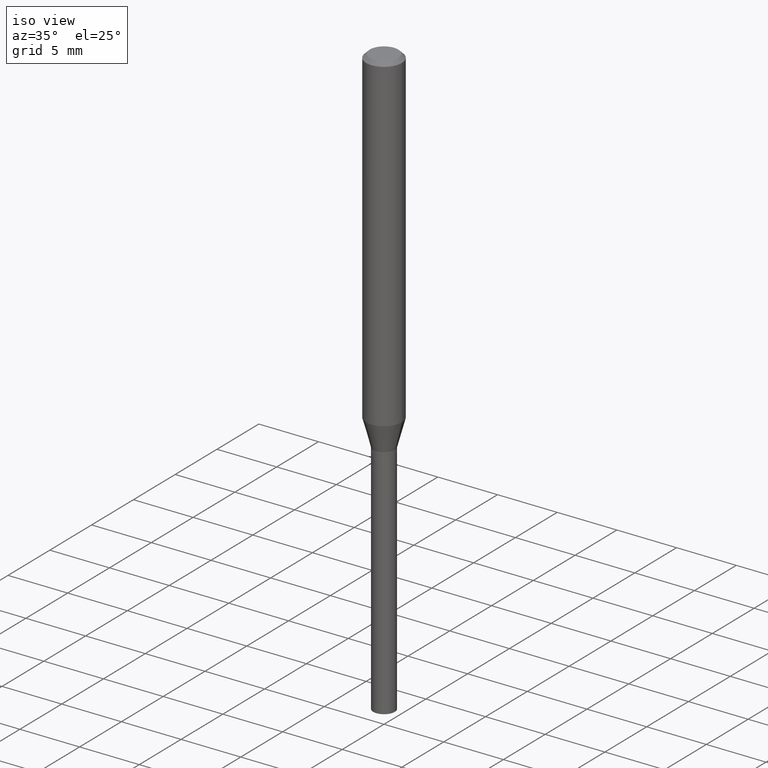
[diagram: clean part render]
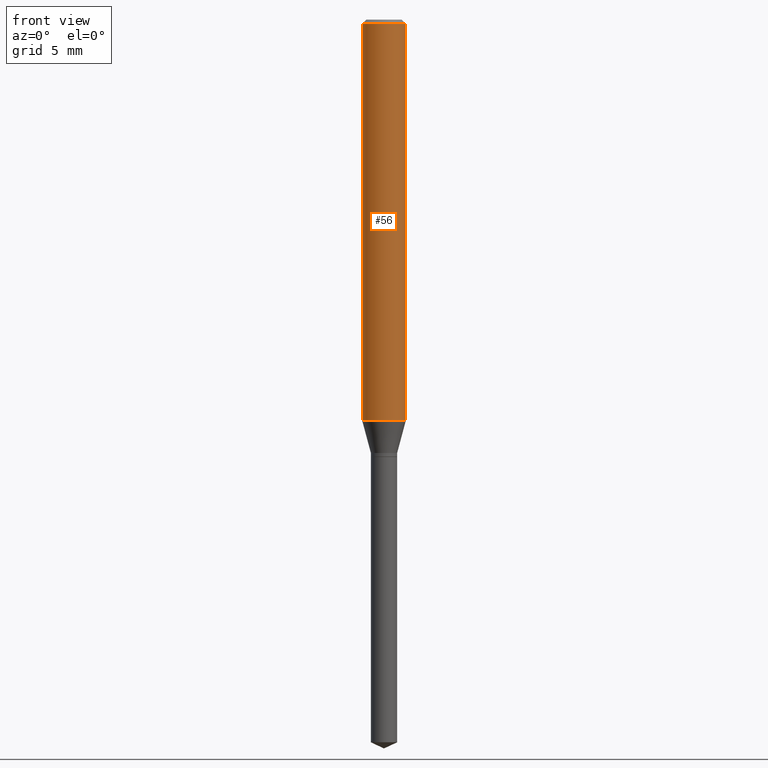
[diagram: tour spotlight — one face highlighted and labeled with its STEP entity id]
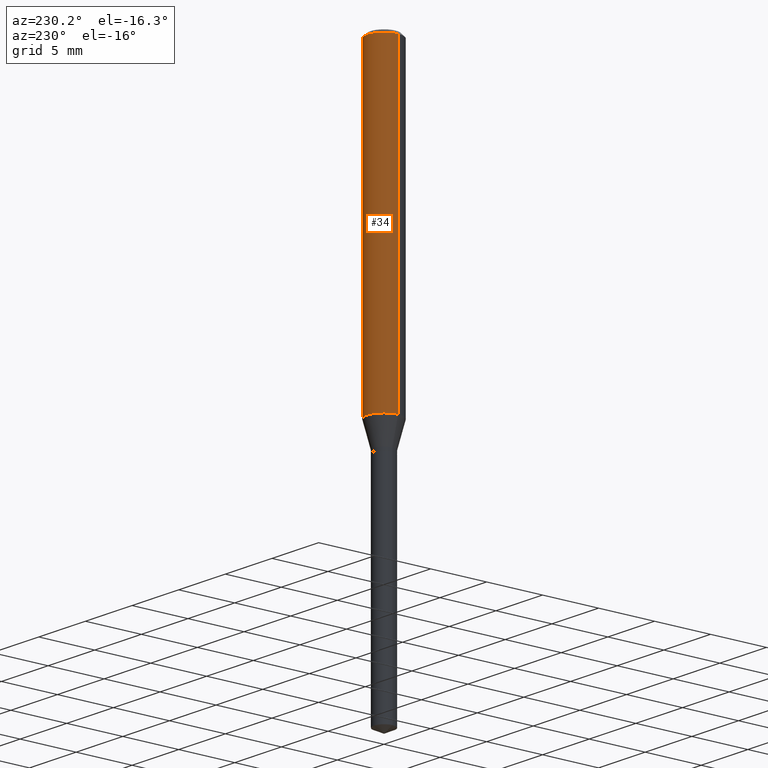
[diagram: tour spotlight — one face highlighted and labeled with its STEP entity id]
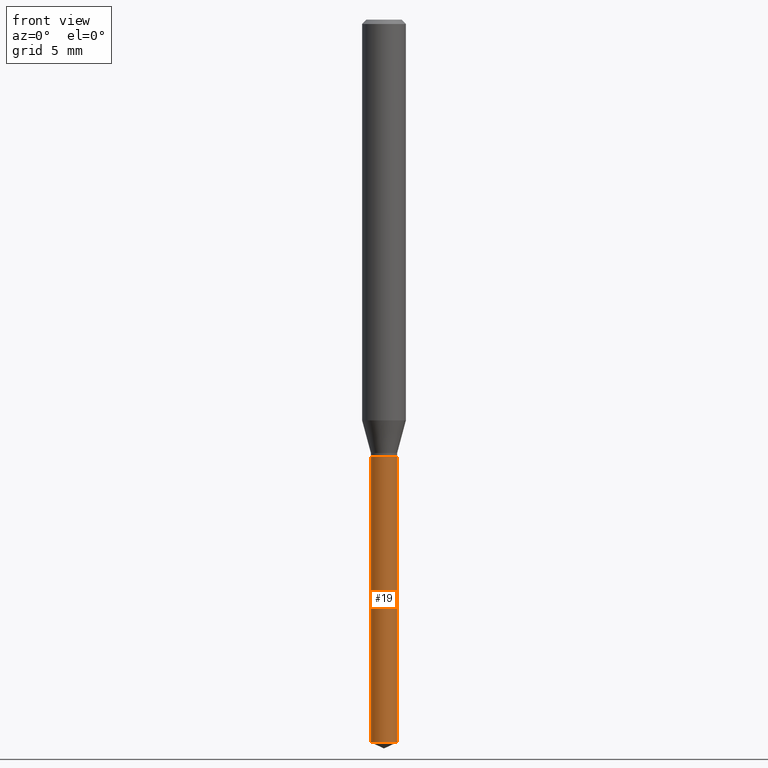
[diagram: tour spotlight — one face highlighted and labeled with its STEP entity id]
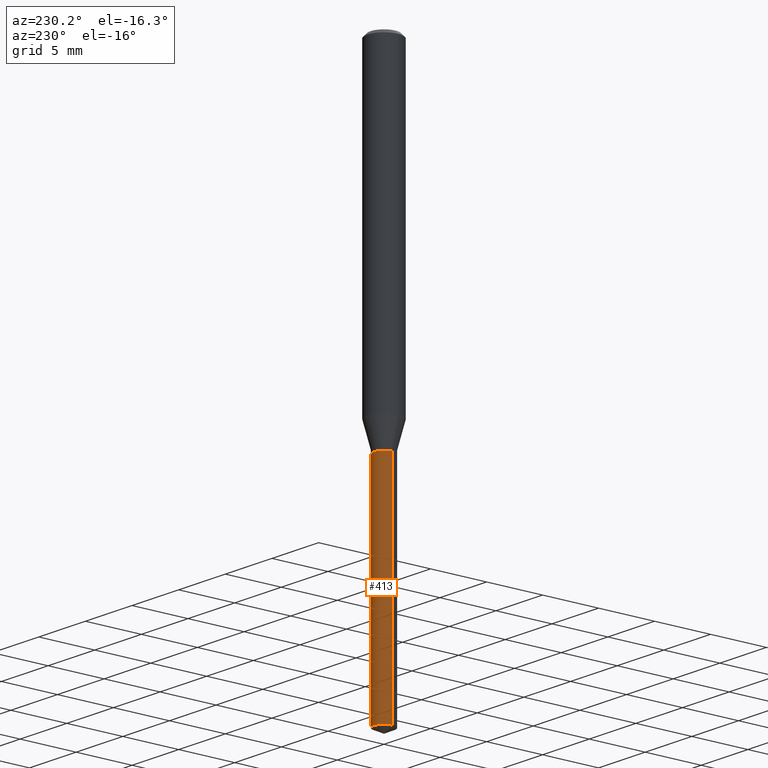
[diagram: tour spotlight — one face highlighted and labeled with its STEP entity id]
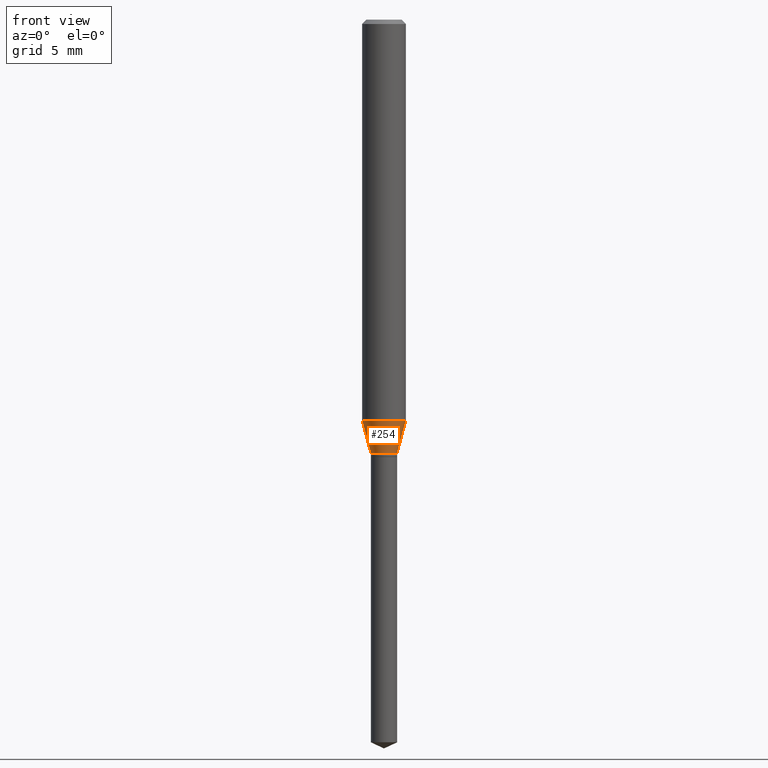
[diagram: tour spotlight — one face highlighted and labeled with its STEP entity id]
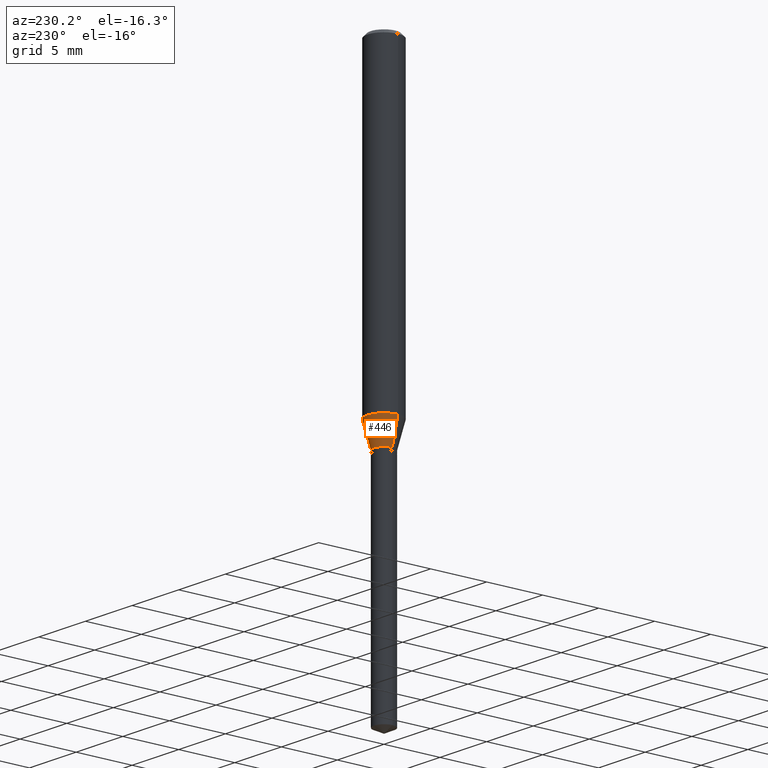
[diagram: tour spotlight — one face highlighted and labeled with its STEP entity id]
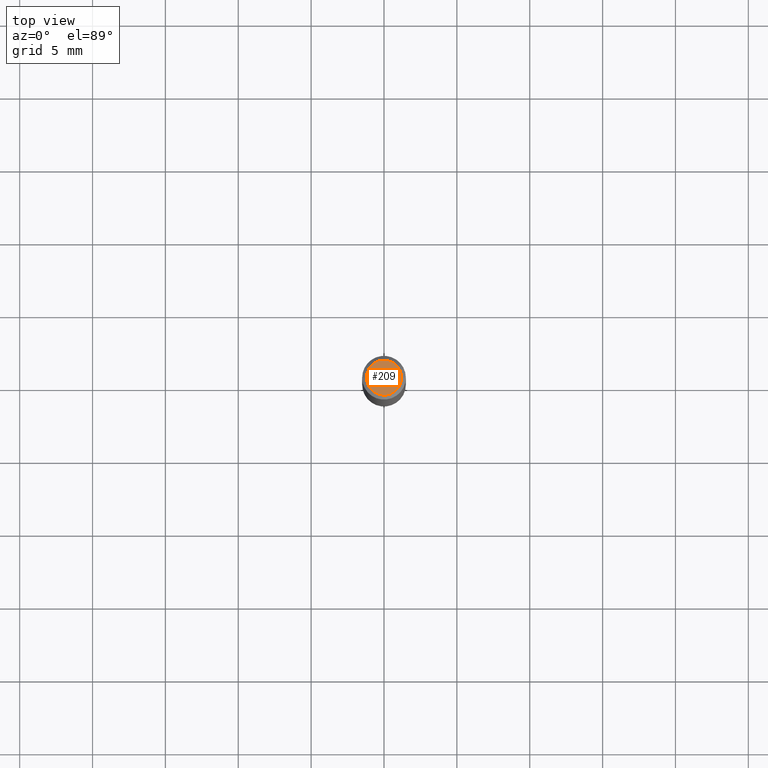
[diagram: tour spotlight — one face highlighted and labeled with its STEP entity id]
A machine part: a face-by-face anatomy tour. The part has 17 B-rep faces; the first image is the clean iso view, then the 7 largest visible faces are spotlighted one at a time (largest first), each with its STEP entity span.

Face 1 — front view, entity #56. In plain terms, the highlighted cylindrical surface (edge-blend (fillet) strip) has radius 1.4999 mm, axis along (-0, 0, 1).
Definition (entity closure, byte-faithful):
#11 = FACE_OUTER_BOUND ( 'NONE', #280, .T. ) ;
#25 = AXIS2_PLACEMENT_3D ( 'NONE', #159, #278, #197 ) ;
#29 = ORIENTED_EDGE ( 'NONE', *, *, #101, .T. ) ;
#45 = AXIS2_PLACEMENT_3D ( 'NONE', #115, #338, #382 ) ;
#56 = ADVANCED_FACE ( 'NONE', ( #11 ), #353, .T. ) ;
#78 = CIRCLE ( 'NONE', #45, 0.05905000000000013710 ) ;
#101 = EDGE_CURVE ( 'NONE', #289, #420, #148, .T. ) ;
#115 = CARTESIAN_POINT ( 'NONE',  ( 2.648255885583811047E-29, -3.781007544079628812E-15, -1.082923600941374076 ) ) ;
#145 = ORIENTED_EDGE ( 'NONE', *, *, #303, .F. ) ;
#148 = LINE ( 'NONE', #152, #475 ) ;
#152 = CARTESIAN_POINT ( 'NONE',  ( 0.05905000000000006771, -4.123439461173745257E-16, 2.879382386107503723E-30 ) ) ;
#159 = CARTESIAN_POINT ( 'NONE',  ( 0.000000000000000000, 0.000000000000000000, 0.000000000000000000 ) ) ;
#165 = CARTESIAN_POINT ( 'NONE',  ( 0.05905000000000000526, -4.535783407291119586E-16, -0.01181000000000007912 ) ) ;
#170 = CARTESIAN_POINT ( 'NONE',  ( -0.05905000000000000526, -1.491545483879342988E-15, -0.01181000000000007912 ) ) ;
#178 = AXIS2_PLACEMENT_3D ( 'NONE', #264, #261, #191 ) ;
#189 = CARTESIAN_POINT ( 'NONE',  ( -0.05905000000000013710, -3.361432058613288530E-15, -1.082923600941374076 ) ) ;
#191 = DIRECTION ( 'NONE',  ( 1.000000000000000000, -6.982962677686267499E-15, 0.000000000000000000 ) ) ;
#197 = DIRECTION ( 'NONE',  ( 1.000000000000000000, -6.982962677686266711E-15, 4.876176775795936353E-29 ) ) ;
#214 = ORIENTED_EDGE ( 'NONE', *, *, #410, .T. ) ;
#222 = CARTESIAN_POINT ( 'NONE',  ( 0.05905000000000013710, -4.193351490197004521E-15, -1.082923600941374076 ) ) ;
#232 = ORIENTED_EDGE ( 'NONE', *, *, #449, .F. ) ;
#245 = VECTOR ( 'NONE', #427, 39.37007874015748143 ) ;
#261 = DIRECTION ( 'NONE',  ( -2.445468806185136597E-29, 3.491481338843145583E-15, 1.000000000000000000 ) ) ;
#264 = CARTESIAN_POINT ( 'NONE',  ( 2.888098660104665956E-31, -4.123439461173782728E-17, -0.01181000000000007912 ) ) ;
#274 = CARTESIAN_POINT ( 'NONE',  ( -0.05905000000000006771, 4.195754854663396409E-16, -2.904631170795525045E-30 ) ) ;
#278 = DIRECTION ( 'NONE',  ( -2.445468806185136597E-29, 3.491481338843145583E-15, 1.000000000000000000 ) ) ;
#280 = EDGE_LOOP ( 'NONE', ( #232, #214, #29, #145 ) ) ;
#289 = VERTEX_POINT ( 'NONE', #222 ) ;
#303 = EDGE_CURVE ( 'NONE', #418, #420, #391, .T. ) ;
#338 = DIRECTION ( 'NONE',  ( -2.445468806185136597E-29, 3.491481338843145583E-15, 1.000000000000000000 ) ) ;
#353 = CYLINDRICAL_SURFACE ( 'NONE', #25, 0.05905000000000006771 ) ;
#355 = LINE ( 'NONE', #274, #245 ) ;
#376 = DIRECTION ( 'NONE',  ( -2.445468806185136877E-29, 3.491481338843145188E-15, 1.000000000000000000 ) ) ;
#382 = DIRECTION ( 'NONE',  ( 1.000000000000000000, -6.982962677686264344E-15, 0.000000000000000000 ) ) ;
#391 = CIRCLE ( 'NONE', #178, 0.05905000000000000526 ) ;
#398 = VERTEX_POINT ( 'NONE', #189 ) ;
#410 = EDGE_CURVE ( 'NONE', #398, #289, #78, .T. ) ;
#418 = VERTEX_POINT ( 'NONE', #170 ) ;
#420 = VERTEX_POINT ( 'NONE', #165 ) ;
#427 = DIRECTION ( 'NONE',  ( -2.445468806185136877E-29, 3.491481338843145188E-15, 1.000000000000000000 ) ) ;
#449 = EDGE_CURVE ( 'NONE', #398, #418, #355, .T. ) ;
#475 = VECTOR ( 'NONE', #376, 39.37007874015748143 ) ;

Face 2 — auxiliary view, entity #34. In plain terms, the highlighted cylindrical surface (edge-blend (fillet) strip) has radius 1.4999 mm, axis along (-0, 0, 1).
Definition (entity closure, byte-faithful):
#5 = CARTESIAN_POINT ( 'NONE',  ( 2.888098660104665956E-31, -4.123439461173782728E-17, -0.01181000000000007912 ) ) ;
#9 = ORIENTED_EDGE ( 'NONE', *, *, #101, .F. ) ;
#18 = AXIS2_PLACEMENT_3D ( 'NONE', #142, #253, #291 ) ;
#34 = ADVANCED_FACE ( 'NONE', ( #98 ), #139, .T. ) ;
#50 = EDGE_CURVE ( 'NONE', #420, #418, #294, .T. ) ;
#62 = ORIENTED_EDGE ( 'NONE', *, *, #317, .T. ) ;
#93 = DIRECTION ( 'NONE',  ( -2.445468806185136597E-29, 3.491481338843145583E-15, 1.000000000000000000 ) ) ;
#98 = FACE_OUTER_BOUND ( 'NONE', #445, .T. ) ;
#101 = EDGE_CURVE ( 'NONE', #289, #420, #148, .T. ) ;
#103 = ORIENTED_EDGE ( 'NONE', *, *, #50, .F. ) ;
#139 = CYLINDRICAL_SURFACE ( 'NONE', #18, 0.05905000000000006771 ) ;
#142 = CARTESIAN_POINT ( 'NONE',  ( 0.000000000000000000, 0.000000000000000000, 0.000000000000000000 ) ) ;
#148 = LINE ( 'NONE', #152, #475 ) ;
#152 = CARTESIAN_POINT ( 'NONE',  ( 0.05905000000000006771, -4.123439461173745257E-16, 2.879382386107503723E-30 ) ) ;
#154 = DIRECTION ( 'NONE',  ( -2.445468806185136597E-29, 3.491481338843145583E-15, 1.000000000000000000 ) ) ;
#165 = CARTESIAN_POINT ( 'NONE',  ( 0.05905000000000000526, -4.535783407291119586E-16, -0.01181000000000007912 ) ) ;
#170 = CARTESIAN_POINT ( 'NONE',  ( -0.05905000000000000526, -1.491545483879342988E-15, -0.01181000000000007912 ) ) ;
#189 = CARTESIAN_POINT ( 'NONE',  ( -0.05905000000000013710, -3.361432058613288530E-15, -1.082923600941374076 ) ) ;
#206 = ORIENTED_EDGE ( 'NONE', *, *, #449, .T. ) ;
#222 = CARTESIAN_POINT ( 'NONE',  ( 0.05905000000000013710, -4.193351490197004521E-15, -1.082923600941374076 ) ) ;
#231 = DIRECTION ( 'NONE',  ( 1.000000000000000000, -6.982962677686264344E-15, 0.000000000000000000 ) ) ;
#240 = DIRECTION ( 'NONE',  ( 1.000000000000000000, -6.982962677686267499E-15, 0.000000000000000000 ) ) ;
#244 = AXIS2_PLACEMENT_3D ( 'NONE', #379, #154, #231 ) ;
#245 = VECTOR ( 'NONE', #427, 39.37007874015748143 ) ;
#253 = DIRECTION ( 'NONE',  ( -2.445468806185136597E-29, 3.491481338843145583E-15, 1.000000000000000000 ) ) ;
#274 = CARTESIAN_POINT ( 'NONE',  ( -0.05905000000000006771, 4.195754854663396409E-16, -2.904631170795525045E-30 ) ) ;
#289 = VERTEX_POINT ( 'NONE', #222 ) ;
#291 = DIRECTION ( 'NONE',  ( 1.000000000000000000, -6.982962677686266711E-15, 4.876176775795936353E-29 ) ) ;
#294 = CIRCLE ( 'NONE', #374, 0.05905000000000000526 ) ;
#317 = EDGE_CURVE ( 'NONE', #289, #398, #459, .T. ) ;
#355 = LINE ( 'NONE', #274, #245 ) ;
#374 = AXIS2_PLACEMENT_3D ( 'NONE', #5, #93, #240 ) ;
#376 = DIRECTION ( 'NONE',  ( -2.445468806185136877E-29, 3.491481338843145188E-15, 1.000000000000000000 ) ) ;
#379 = CARTESIAN_POINT ( 'NONE',  ( 2.648255885583811047E-29, -3.781007544079628812E-15, -1.082923600941374076 ) ) ;
#398 = VERTEX_POINT ( 'NONE', #189 ) ;
#418 = VERTEX_POINT ( 'NONE', #170 ) ;
#420 = VERTEX_POINT ( 'NONE', #165 ) ;
#427 = DIRECTION ( 'NONE',  ( -2.445468806185136877E-29, 3.491481338843145188E-15, 1.000000000000000000 ) ) ;
#445 = EDGE_LOOP ( 'NONE', ( #62, #206, #103, #9 ) ) ;
#449 = EDGE_CURVE ( 'NONE', #398, #418, #355, .T. ) ;
#459 = CIRCLE ( 'NONE', #244, 0.05905000000000013710 ) ;
#475 = VECTOR ( 'NONE', #376, 39.37007874015748143 ) ;

Face 3 — front view, entity #19. In plain terms, the highlighted cylindrical surface (edge-blend (fillet) strip) has radius 0.9004 mm, axis along (-0, 0, 1).
Definition (entity closure, byte-faithful):
#19 = ADVANCED_FACE ( 'NONE', ( #263 ), #76, .T. ) ;
#33 = DIRECTION ( 'NONE',  ( -2.445468806185136877E-29, 3.491481338843145188E-15, 1.000000000000000000 ) ) ;
#48 = CARTESIAN_POINT ( 'NONE',  ( 4.774702996880473666E-29, -6.817010452131907471E-15, -1.952469393518405649 ) ) ;
#53 = AXIS2_PLACEMENT_3D ( 'NONE', #248, #89, #87 ) ;
#61 = VERTEX_POINT ( 'NONE', #169 ) ;
#76 = CYLINDRICAL_SURFACE ( 'NONE', #363, 0.03545000000000000234 ) ;
#87 = DIRECTION ( 'NONE',  ( 1.000000000000000000, -6.982962677686268288E-15, 0.000000000000000000 ) ) ;
#89 = DIRECTION ( 'NONE',  ( -2.445468806185136597E-29, 3.491481338843145583E-15, 1.000000000000000000 ) ) ;
#129 = ORIENTED_EDGE ( 'NONE', *, *, #458, .T. ) ;
#134 = DIRECTION ( 'NONE',  ( -2.445468806185136597E-29, 3.491481338843145583E-15, 1.000000000000000000 ) ) ;
#138 = VERTEX_POINT ( 'NONE', #471 ) ;
#158 = EDGE_CURVE ( 'NONE', #309, #138, #358, .T. ) ;
#169 = CARTESIAN_POINT ( 'NONE',  ( -0.03545000000000000234, -5.219385001227529009E-15, -1.181600000000000206 ) ) ;
#174 = ORIENTED_EDGE ( 'NONE', *, *, #196, .F. ) ;
#185 = CARTESIAN_POINT ( 'NONE',  ( -0.03545000000000000234, -6.565123052304952086E-15, -1.952469393518405649 ) ) ;
#193 = CIRCLE ( 'NONE', #53, 0.03545000000000000234 ) ;
#196 = EDGE_CURVE ( 'NONE', #309, #61, #243, .T. ) ;
#241 = DIRECTION ( 'NONE',  ( -2.445468806185136877E-29, 3.491481338843145188E-15, 1.000000000000000000 ) ) ;
#243 = LINE ( 'NONE', #392, #345 ) ;
#248 = CARTESIAN_POINT ( 'NONE',  ( 2.889565941388357678E-29, -4.125534349977061317E-15, -1.181600000000000206 ) ) ;
#263 = FACE_OUTER_BOUND ( 'NONE', #292, .T. ) ;
#276 = VERTEX_POINT ( 'NONE', #343 ) ;
#279 = DIRECTION ( 'NONE',  ( 1.000000000000000000, -6.982962677686254089E-15, 0.000000000000000000 ) ) ;
#288 = CARTESIAN_POINT ( 'NONE',  ( 2.889565941388357118E-29, -4.125534349977060528E-15, -1.181599999999999984 ) ) ;
#292 = EDGE_LOOP ( 'NONE', ( #174, #321, #129, #454 ) ) ;
#309 = VERTEX_POINT ( 'NONE', #185 ) ;
#310 = VECTOR ( 'NONE', #241, 39.37007874015748143 ) ;
#312 = CARTESIAN_POINT ( 'NONE',  ( 0.03545000000000000234, -4.373080376901038411E-15, -1.181599999999999984 ) ) ;
#321 = ORIENTED_EDGE ( 'NONE', *, *, #158, .T. ) ;
#325 = DIRECTION ( 'NONE',  ( 1.000000000000000000, -6.982962677686254089E-15, 0.000000000000000000 ) ) ;
#343 = CARTESIAN_POINT ( 'NONE',  ( 0.03545000000000000234, -4.373080376901039200E-15, -1.181600000000000206 ) ) ;
#345 = VECTOR ( 'NONE', #33, 39.37007874015748143 ) ;
#358 = CIRCLE ( 'NONE', #434, 0.03545000000000000234 ) ;
#363 = AXIS2_PLACEMENT_3D ( 'NONE', #288, #480, #325 ) ;
#392 = CARTESIAN_POINT ( 'NONE',  ( -0.03545000000000000234, -3.873646950150105143E-15, -1.181599999999999984 ) ) ;
#422 = LINE ( 'NONE', #312, #310 ) ;
#434 = AXIS2_PLACEMENT_3D ( 'NONE', #48, #134, #279 ) ;
#454 = ORIENTED_EDGE ( 'NONE', *, *, #479, .F. ) ;
#458 = EDGE_CURVE ( 'NONE', #138, #276, #422, .T. ) ;
#471 = CARTESIAN_POINT ( 'NONE',  ( 0.03545000000000000234, -7.064556479055885354E-15, -1.952469393518405649 ) ) ;
#479 = EDGE_CURVE ( 'NONE', #61, #276, #193, .T. ) ;
#480 = DIRECTION ( 'NONE',  ( -2.445468806185136597E-29, 3.491481338843145583E-15, 1.000000000000000000 ) ) ;

Face 4 — auxiliary view, entity #413. In plain terms, the highlighted cylindrical surface (edge-blend (fillet) strip) has radius 0.9004 mm, axis along (-0, 0, 1).
Definition (entity closure, byte-faithful):
#1 = ORIENTED_EDGE ( 'NONE', *, *, #196, .T. ) ;
#33 = DIRECTION ( 'NONE',  ( -2.445468806185136877E-29, 3.491481338843145188E-15, 1.000000000000000000 ) ) ;
#36 = CIRCLE ( 'NONE', #301, 0.03545000000000000234 ) ;
#47 = CYLINDRICAL_SURFACE ( 'NONE', #102, 0.03545000000000000234 ) ;
#61 = VERTEX_POINT ( 'NONE', #169 ) ;
#74 = ORIENTED_EDGE ( 'NONE', *, *, #90, .F. ) ;
#90 = EDGE_CURVE ( 'NONE', #276, #61, #36, .T. ) ;
#102 = AXIS2_PLACEMENT_3D ( 'NONE', #194, #157, #277 ) ;
#124 = DIRECTION ( 'NONE',  ( 1.000000000000000000, -6.982962677686254089E-15, 0.000000000000000000 ) ) ;
#128 = CARTESIAN_POINT ( 'NONE',  ( 4.774702996880473666E-29, -6.817010452131907471E-15, -1.952469393518405649 ) ) ;
#138 = VERTEX_POINT ( 'NONE', #471 ) ;
#146 = AXIS2_PLACEMENT_3D ( 'NONE', #128, #464, #124 ) ;
#157 = DIRECTION ( 'NONE',  ( -2.445468806185136597E-29, 3.491481338843145583E-15, 1.000000000000000000 ) ) ;
#169 = CARTESIAN_POINT ( 'NONE',  ( -0.03545000000000000234, -5.219385001227529009E-15, -1.181600000000000206 ) ) ;
#176 = EDGE_CURVE ( 'NONE', #138, #309, #487, .T. ) ;
#180 = EDGE_LOOP ( 'NONE', ( #250, #1, #74, #313 ) ) ;
#184 = CARTESIAN_POINT ( 'NONE',  ( 2.889565941388357678E-29, -4.125534349977061317E-15, -1.181600000000000206 ) ) ;
#185 = CARTESIAN_POINT ( 'NONE',  ( -0.03545000000000000234, -6.565123052304952086E-15, -1.952469393518405649 ) ) ;
#194 = CARTESIAN_POINT ( 'NONE',  ( 2.889565941388357118E-29, -4.125534349977060528E-15, -1.181599999999999984 ) ) ;
#196 = EDGE_CURVE ( 'NONE', #309, #61, #243, .T. ) ;
#223 = DIRECTION ( 'NONE',  ( -2.445468806185136597E-29, 3.491481338843145583E-15, 1.000000000000000000 ) ) ;
#241 = DIRECTION ( 'NONE',  ( -2.445468806185136877E-29, 3.491481338843145188E-15, 1.000000000000000000 ) ) ;
#243 = LINE ( 'NONE', #392, #345 ) ;
#250 = ORIENTED_EDGE ( 'NONE', *, *, #176, .T. ) ;
#259 = FACE_OUTER_BOUND ( 'NONE', #180, .T. ) ;
#276 = VERTEX_POINT ( 'NONE', #343 ) ;
#277 = DIRECTION ( 'NONE',  ( 1.000000000000000000, -6.982962677686254089E-15, 0.000000000000000000 ) ) ;
#301 = AXIS2_PLACEMENT_3D ( 'NONE', #184, #223, #371 ) ;
#309 = VERTEX_POINT ( 'NONE', #185 ) ;
#310 = VECTOR ( 'NONE', #241, 39.37007874015748143 ) ;
#312 = CARTESIAN_POINT ( 'NONE',  ( 0.03545000000000000234, -4.373080376901038411E-15, -1.181599999999999984 ) ) ;
#313 = ORIENTED_EDGE ( 'NONE', *, *, #458, .F. ) ;
#343 = CARTESIAN_POINT ( 'NONE',  ( 0.03545000000000000234, -4.373080376901039200E-15, -1.181600000000000206 ) ) ;
#345 = VECTOR ( 'NONE', #33, 39.37007874015748143 ) ;
#371 = DIRECTION ( 'NONE',  ( 1.000000000000000000, -6.982962677686268288E-15, 0.000000000000000000 ) ) ;
#392 = CARTESIAN_POINT ( 'NONE',  ( -0.03545000000000000234, -3.873646950150105143E-15, -1.181599999999999984 ) ) ;
#413 = ADVANCED_FACE ( 'NONE', ( #259 ), #47, .T. ) ;
#422 = LINE ( 'NONE', #312, #310 ) ;
#458 = EDGE_CURVE ( 'NONE', #138, #276, #422, .T. ) ;
#464 = DIRECTION ( 'NONE',  ( -2.445468806185136597E-29, 3.491481338843145583E-15, 1.000000000000000000 ) ) ;
#471 = CARTESIAN_POINT ( 'NONE',  ( 0.03545000000000000234, -7.064556479055885354E-15, -1.952469393518405649 ) ) ;
#487 = CIRCLE ( 'NONE', #146, 0.03545000000000000234 ) ;

Face 5 — front view, entity #254. In plain terms, the highlighted conical surface has half-angle 15 deg.
Definition (entity closure, byte-faithful):
#10 = DIRECTION ( 'NONE',  ( -2.445468806185136597E-29, 3.491481338843145583E-15, 1.000000000000000000 ) ) ;
#32 = LINE ( 'NONE', #466, #44 ) ;
#38 = ORIENTED_EDGE ( 'NONE', *, *, #410, .F. ) ;
#40 = CARTESIAN_POINT ( 'NONE',  ( -0.03545000000000000928, -3.854269228719525270E-15, -1.170999999999999819 ) ) ;
#44 = VECTOR ( 'NONE', #242, 39.37007874015748854 ) ;
#45 = AXIS2_PLACEMENT_3D ( 'NONE', #115, #338, #382 ) ;
#67 = CARTESIAN_POINT ( 'NONE',  ( 0.03545000000000000928, -4.336070674709300958E-15, -1.170999999999999819 ) ) ;
#78 = CIRCLE ( 'NONE', #45, 0.05905000000000013710 ) ;
#95 = DIRECTION ( 'NONE',  ( 0.2588190451025211836, 1.565188264969622559E-15, 0.9659258262890679791 ) ) ;
#115 = CARTESIAN_POINT ( 'NONE',  ( 2.648255885583811047E-29, -3.781007544079628812E-15, -1.082923600941374076 ) ) ;
#119 = AXIS2_PLACEMENT_3D ( 'NONE', #168, #10, #204 ) ;
#132 = ORIENTED_EDGE ( 'NONE', *, *, #182, .T. ) ;
#136 = CARTESIAN_POINT ( 'NONE',  ( 0.03545000000000000928, -4.336070674709300958E-15, -1.170999999999999819 ) ) ;
#168 = CARTESIAN_POINT ( 'NONE',  ( 2.863643972042794547E-29, -4.088524647785323075E-15, -1.170999999999999819 ) ) ;
#182 = EDGE_CURVE ( 'NONE', #361, #216, #251, .T. ) ;
#186 = CONICAL_SURFACE ( 'NONE', #226, 0.03545000000000000928, 0.2617993877991499074 ) ;
#189 = CARTESIAN_POINT ( 'NONE',  ( -0.05905000000000013710, -3.361432058613288530E-15, -1.082923600941374076 ) ) ;
#204 = DIRECTION ( 'NONE',  ( 1.000000000000000000, -6.982962677686266711E-15, 0.000000000000000000 ) ) ;
#216 = VERTEX_POINT ( 'NONE', #67 ) ;
#222 = CARTESIAN_POINT ( 'NONE',  ( 0.05905000000000013710, -4.193351490197004521E-15, -1.082923600941374076 ) ) ;
#226 = AXIS2_PLACEMENT_3D ( 'NONE', #341, #369, #300 ) ;
#228 = EDGE_CURVE ( 'NONE', #361, #398, #32, .T. ) ;
#242 = DIRECTION ( 'NONE',  ( -0.2588190451025211836, 5.211531920934547886E-15, 0.9659258262890679791 ) ) ;
#251 = CIRCLE ( 'NONE', #119, 0.03545000000000000928 ) ;
#254 = ADVANCED_FACE ( 'NONE', ( #412 ), #186, .T. ) ;
#289 = VERTEX_POINT ( 'NONE', #222 ) ;
#300 = DIRECTION ( 'NONE',  ( 1.000000000000000000, -6.982962677686266711E-15, 0.000000000000000000 ) ) ;
#314 = LINE ( 'NONE', #136, #328 ) ;
#328 = VECTOR ( 'NONE', #95, 39.37007874015748854 ) ;
#338 = DIRECTION ( 'NONE',  ( -2.445468806185136597E-29, 3.491481338843145583E-15, 1.000000000000000000 ) ) ;
#341 = CARTESIAN_POINT ( 'NONE',  ( 2.863643972042794547E-29, -4.088524647785323075E-15, -1.170999999999999819 ) ) ;
#360 = EDGE_LOOP ( 'NONE', ( #402, #132, #367, #38 ) ) ;
#361 = VERTEX_POINT ( 'NONE', #40 ) ;
#367 = ORIENTED_EDGE ( 'NONE', *, *, #463, .T. ) ;
#369 = DIRECTION ( 'NONE',  ( -2.445468806185136597E-29, 3.491481338843145583E-15, 1.000000000000000000 ) ) ;
#382 = DIRECTION ( 'NONE',  ( 1.000000000000000000, -6.982962677686264344E-15, 0.000000000000000000 ) ) ;
#398 = VERTEX_POINT ( 'NONE', #189 ) ;
#402 = ORIENTED_EDGE ( 'NONE', *, *, #228, .F. ) ;
#410 = EDGE_CURVE ( 'NONE', #398, #289, #78, .T. ) ;
#412 = FACE_OUTER_BOUND ( 'NONE', #360, .T. ) ;
#463 = EDGE_CURVE ( 'NONE', #216, #289, #314, .T. ) ;
#466 = CARTESIAN_POINT ( 'NONE',  ( -0.03545000000000000928, -3.836637247958367690E-15, -1.170999999999999819 ) ) ;

Face 6 — auxiliary view, entity #446. In plain terms, the highlighted conical surface has half-angle 15 deg.
Definition (entity closure, byte-faithful):
#22 = ORIENTED_EDGE ( 'NONE', *, *, #463, .F. ) ;
#32 = LINE ( 'NONE', #466, #44 ) ;
#40 = CARTESIAN_POINT ( 'NONE',  ( -0.03545000000000000928, -3.854269228719525270E-15, -1.170999999999999819 ) ) ;
#44 = VECTOR ( 'NONE', #242, 39.37007874015748854 ) ;
#67 = CARTESIAN_POINT ( 'NONE',  ( 0.03545000000000000928, -4.336070674709300958E-15, -1.170999999999999819 ) ) ;
#95 = DIRECTION ( 'NONE',  ( 0.2588190451025211836, 1.565188264969622559E-15, 0.9659258262890679791 ) ) ;
#125 = DIRECTION ( 'NONE',  ( -2.445468806185136597E-29, 3.491481338843145583E-15, 1.000000000000000000 ) ) ;
#126 = DIRECTION ( 'NONE',  ( 1.000000000000000000, -6.982962677686266711E-15, 0.000000000000000000 ) ) ;
#136 = CARTESIAN_POINT ( 'NONE',  ( 0.03545000000000000928, -4.336070674709300958E-15, -1.170999999999999819 ) ) ;
#154 = DIRECTION ( 'NONE',  ( -2.445468806185136597E-29, 3.491481338843145583E-15, 1.000000000000000000 ) ) ;
#155 = CONICAL_SURFACE ( 'NONE', #208, 0.03545000000000000928, 0.2617993877991499074 ) ;
#163 = ORIENTED_EDGE ( 'NONE', *, *, #228, .T. ) ;
#189 = CARTESIAN_POINT ( 'NONE',  ( -0.05905000000000013710, -3.361432058613288530E-15, -1.082923600941374076 ) ) ;
#202 = DIRECTION ( 'NONE',  ( 1.000000000000000000, -6.982962677686266711E-15, 0.000000000000000000 ) ) ;
#208 = AXIS2_PLACEMENT_3D ( 'NONE', #468, #125, #202 ) ;
#216 = VERTEX_POINT ( 'NONE', #67 ) ;
#220 = DIRECTION ( 'NONE',  ( -2.445468806185136597E-29, 3.491481338843145583E-15, 1.000000000000000000 ) ) ;
#222 = CARTESIAN_POINT ( 'NONE',  ( 0.05905000000000013710, -4.193351490197004521E-15, -1.082923600941374076 ) ) ;
#228 = EDGE_CURVE ( 'NONE', #361, #398, #32, .T. ) ;
#231 = DIRECTION ( 'NONE',  ( 1.000000000000000000, -6.982962677686264344E-15, 0.000000000000000000 ) ) ;
#233 = EDGE_CURVE ( 'NONE', #216, #361, #272, .T. ) ;
#242 = DIRECTION ( 'NONE',  ( -0.2588190451025211836, 5.211531920934547886E-15, 0.9659258262890679791 ) ) ;
#244 = AXIS2_PLACEMENT_3D ( 'NONE', #379, #154, #231 ) ;
#247 = FACE_OUTER_BOUND ( 'NONE', #275, .T. ) ;
#272 = CIRCLE ( 'NONE', #482, 0.03545000000000000928 ) ;
#275 = EDGE_LOOP ( 'NONE', ( #467, #163, #330, #22 ) ) ;
#289 = VERTEX_POINT ( 'NONE', #222 ) ;
#314 = LINE ( 'NONE', #136, #328 ) ;
#317 = EDGE_CURVE ( 'NONE', #289, #398, #459, .T. ) ;
#328 = VECTOR ( 'NONE', #95, 39.37007874015748854 ) ;
#329 = CARTESIAN_POINT ( 'NONE',  ( 2.863643972042794547E-29, -4.088524647785323075E-15, -1.170999999999999819 ) ) ;
#330 = ORIENTED_EDGE ( 'NONE', *, *, #317, .F. ) ;
#361 = VERTEX_POINT ( 'NONE', #40 ) ;
#379 = CARTESIAN_POINT ( 'NONE',  ( 2.648255885583811047E-29, -3.781007544079628812E-15, -1.082923600941374076 ) ) ;
#398 = VERTEX_POINT ( 'NONE', #189 ) ;
#446 = ADVANCED_FACE ( 'NONE', ( #247 ), #155, .T. ) ;
#459 = CIRCLE ( 'NONE', #244, 0.05905000000000013710 ) ;
#463 = EDGE_CURVE ( 'NONE', #216, #289, #314, .T. ) ;
#466 = CARTESIAN_POINT ( 'NONE',  ( -0.03545000000000000928, -3.836637247958367690E-15, -1.170999999999999819 ) ) ;
#467 = ORIENTED_EDGE ( 'NONE', *, *, #233, .T. ) ;
#468 = CARTESIAN_POINT ( 'NONE',  ( 2.863643972042794547E-29, -4.088524647785323075E-15, -1.170999999999999819 ) ) ;
#482 = AXIS2_PLACEMENT_3D ( 'NONE', #329, #220, #126 ) ;

Face 7 — top view, entity #209. In plain terms, the highlighted planar face has unit normal (0, -0, -1).
Definition (entity closure, byte-faithful):
#14 = ORIENTED_EDGE ( 'NONE', *, *, #217, .T. ) ;
#21 = EDGE_LOOP ( 'NONE', ( #344, #14 ) ) ;
#24 = VERTEX_POINT ( 'NONE', #287 ) ;
#66 = DIRECTION ( 'NONE',  ( 1.000000000000000000, -6.982962677686266711E-15, 4.876185090822587894E-29 ) ) ;
#72 = CARTESIAN_POINT ( 'NONE',  ( 0.04724000000000000421, -3.852183633974369838E-16, -3.380025165621689721E-19 ) ) ;
#77 = AXIS2_PLACEMENT_3D ( 'NONE', #469, #389, #444 ) ;
#85 = PLANE ( 'NONE',  #77 ) ;
#200 = CIRCLE ( 'NONE', #424, 0.04724000000000000421 ) ;
#209 = ADVANCED_FACE ( 'NONE', ( #430 ), #85, .F. ) ;
#217 = EDGE_CURVE ( 'NONE', #333, #24, #200, .T. ) ;
#284 = DIRECTION ( 'NONE',  ( 1.000000000000000000, -6.982962677686266711E-15, 4.876185090822587894E-29 ) ) ;
#287 = CARTESIAN_POINT ( 'NONE',  ( -0.04724000000000000421, 3.504923541997677355E-16, -3.380025165670481712E-19 ) ) ;
#333 = VERTEX_POINT ( 'NONE', #72 ) ;
#344 = ORIENTED_EDGE ( 'NONE', *, *, #431, .T. ) ;
#351 = AXIS2_PLACEMENT_3D ( 'NONE', #352, #433, #284 ) ;
#352 = CARTESIAN_POINT ( 'NONE',  ( 8.265746106709734507E-48, -1.180129479067563789E-33, -3.380025165646692144E-19 ) ) ;
#365 = CIRCLE ( 'NONE', #351, 0.04724000000000000421 ) ;
#370 = DIRECTION ( 'NONE',  ( -2.445468806185136597E-29, 3.491481338843145583E-15, 1.000000000000000000 ) ) ;
#389 = DIRECTION ( 'NONE',  ( 2.438088387897960049E-29, -3.491481338843145188E-15, -1.000000000000000000 ) ) ;
#401 = CARTESIAN_POINT ( 'NONE',  ( 8.265746106709734507E-48, -1.180129479067563789E-33, -3.380025165646692144E-19 ) ) ;
#424 = AXIS2_PLACEMENT_3D ( 'NONE', #401, #370, #66 ) ;
#430 = FACE_OUTER_BOUND ( 'NONE', #21, .T. ) ;
#431 = EDGE_CURVE ( 'NONE', #24, #333, #365, .T. ) ;
#433 = DIRECTION ( 'NONE',  ( -2.445468806185136597E-29, 3.491481338843145583E-15, 1.000000000000000000 ) ) ;
#444 = DIRECTION ( 'NONE',  ( -1.000000000000000000, 6.982962677686265922E-15, -4.876176775795935793E-29 ) ) ;
#469 = CARTESIAN_POINT ( 'NONE',  ( 4.132873053354867254E-48, -5.900647395337818946E-34, -1.690012582823346072E-19 ) ) ;